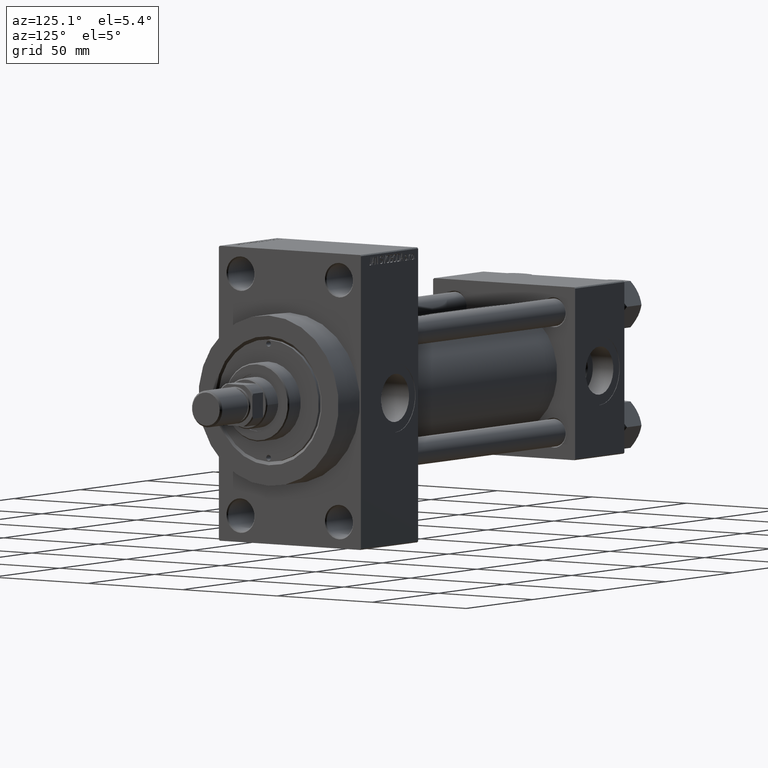
[diagram: clean part render]
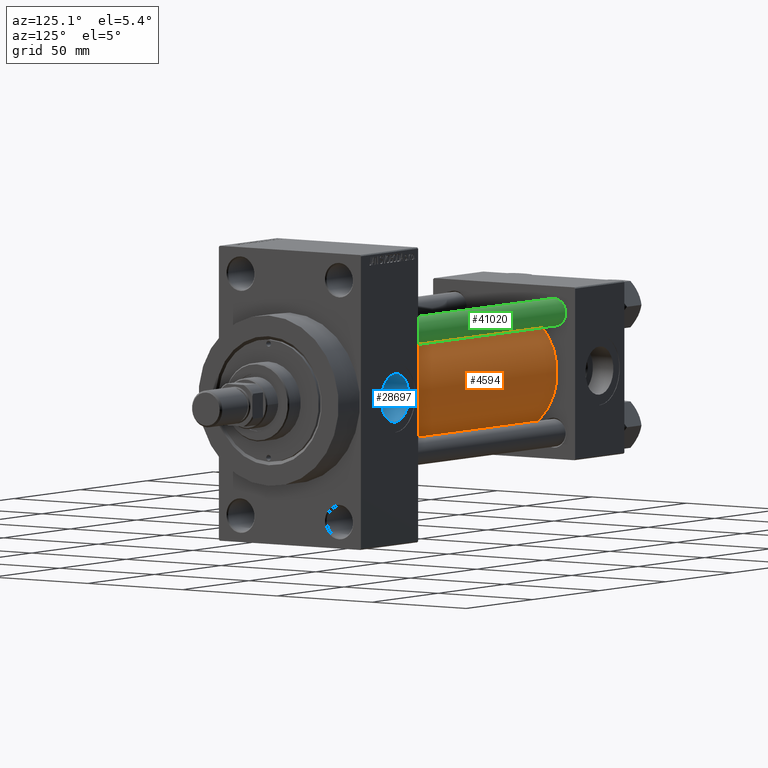
[diagram: same view with three faces highlighted in distinct colors, each labeled with its STEP entity id]
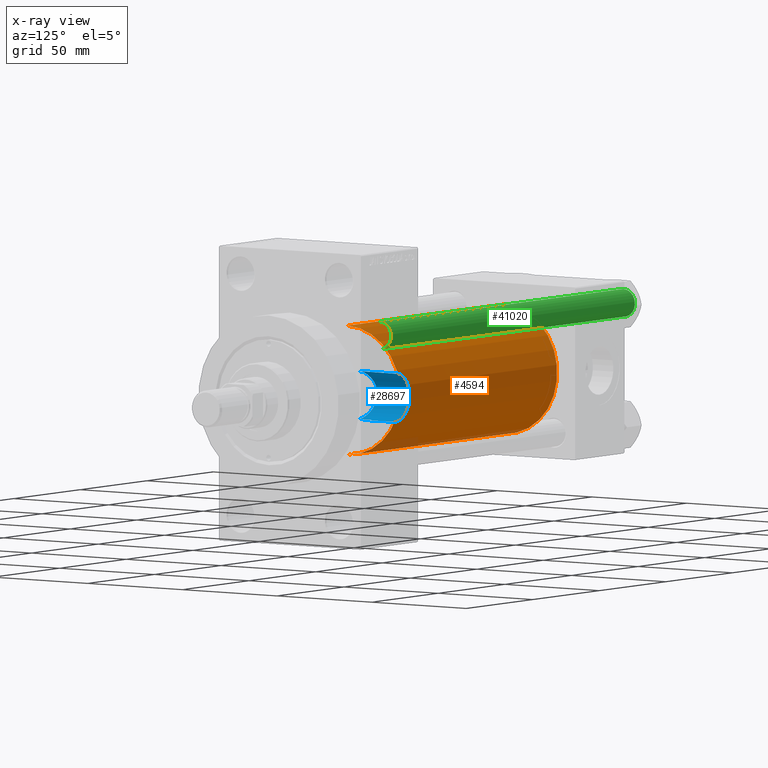
[diagram: x-ray of the same camera — body ghosted, the three highlighted faces saturated]
A machine part, auxiliary view with three faces highlighted in distinct colors.
The next image is the same camera in x-ray (body ghosted, the three faces saturated) — at least one of them is partly hidden behind the body in this view.
Their STEP definitions:

[orange] entity #4594 — the highlighted cylindrical surface (partial cylindrical patch) has radius 28 mm, axis along (-1, -0, -0).
#668 = CIRCLE ( 'NONE', #11199, 28.00000000000000000 ) ;
#4154 = VECTOR ( 'NONE', #9634, 1000.000000000000000 ) ;
#4594 = ADVANCED_FACE ( 'NONE', ( #46894 ), #12287, .T. ) ;
#5592 = EDGE_CURVE ( 'NONE', #42139, #32856, #30067, .T. ) ;
#7662 = EDGE_CURVE ( 'NONE', #17131, #32856, #22836, .T. ) ;
#9634 = DIRECTION ( 'NONE',  ( -1.000000000000000000, -0.000000000000000000, -0.000000000000000000 ) ) ;
#9651 = VECTOR ( 'NONE', #25080, 1000.000000000000000 ) ;
#10978 = CARTESIAN_POINT ( 'NONE',  ( 155.0000000000000000, 8.269258236473784371E-16, -28.00000000000000000 ) ) ;
#11199 = AXIS2_PLACEMENT_3D ( 'NONE', #42833, #23638, #35501 ) ;
#11543 = DIRECTION ( 'NONE',  ( -1.000000000000000000, -0.000000000000000000, -0.000000000000000000 ) ) ;
#12287 = CYLINDRICAL_SURFACE ( 'NONE', #22690, 28.00000000000000000 ) ;
#12554 = ORIENTED_EDGE ( 'NONE', *, *, #7662, .T. ) ;
#12862 = CARTESIAN_POINT ( 'NONE',  ( 37.00000000000000711, 8.269258236473784371E-16, -28.00000000000000000 ) ) ;
#13589 = EDGE_LOOP ( 'NONE', ( #35321, #40349, #12554, #35129 ) ) ;
#17131 = VERTEX_POINT ( 'NONE', #12862 ) ;
#18783 = CARTESIAN_POINT ( 'NONE',  ( 155.0000000000000000, -2.602085213965210642E-15, 28.00000000000000000 ) ) ;
#21793 = DIRECTION ( 'NONE',  ( 0.000000000000000000, 0.000000000000000000, 1.000000000000000000 ) ) ;
#22271 = VERTEX_POINT ( 'NONE', #10978 ) ;
#22690 = AXIS2_PLACEMENT_3D ( 'NONE', #43347, #11543, #27693 ) ;
#22836 = CIRCLE ( 'NONE', #34143, 28.00000000000000000 ) ;
#23638 = DIRECTION ( 'NONE',  ( 1.000000000000000000, 0.000000000000000000, 0.000000000000000000 ) ) ;
#25080 = DIRECTION ( 'NONE',  ( -1.000000000000000000, -0.000000000000000000, -0.000000000000000000 ) ) ;
#27693 = DIRECTION ( 'NONE',  ( 0.000000000000000000, 0.000000000000000000, 1.000000000000000000 ) ) ;
#29871 = CARTESIAN_POINT ( 'NONE',  ( 37.00000000000000711, -2.602085213965210642E-15, 0.000000000000000000 ) ) ;
#30067 = LINE ( 'NONE', #41432, #4154 ) ;
#31014 = EDGE_CURVE ( 'NONE', #22271, #42139, #668, .T. ) ;
#32157 = LINE ( 'NONE', #35941, #9651 ) ;
#32856 = VERTEX_POINT ( 'NONE', #39353 ) ;
#34143 = AXIS2_PLACEMENT_3D ( 'NONE', #29871, #36705, #21793 ) ;
#35129 = ORIENTED_EDGE ( 'NONE', *, *, #5592, .F. ) ;
#35321 = ORIENTED_EDGE ( 'NONE', *, *, #31014, .F. ) ;
#35322 = EDGE_CURVE ( 'NONE', #22271, #17131, #32157, .T. ) ;
#35501 = DIRECTION ( 'NONE',  ( 0.000000000000000000, 0.000000000000000000, -1.000000000000000000 ) ) ;
#35941 = CARTESIAN_POINT ( 'NONE',  ( 155.0000000000000000, 8.269258236473784371E-16, -28.00000000000000000 ) ) ;
#36705 = DIRECTION ( 'NONE',  ( 1.000000000000000000, -0.000000000000000000, 0.000000000000000000 ) ) ;
#39353 = CARTESIAN_POINT ( 'NONE',  ( 37.00000000000000711, -2.602085213965210642E-15, 28.00000000000000000 ) ) ;
#40349 = ORIENTED_EDGE ( 'NONE', *, *, #35322, .T. ) ;
#41432 = CARTESIAN_POINT ( 'NONE',  ( 155.0000000000000000, -2.602085213965210642E-15, 28.00000000000000000 ) ) ;
#42139 = VERTEX_POINT ( 'NONE', #18783 ) ;
#42833 = CARTESIAN_POINT ( 'NONE',  ( 155.0000000000000000, -2.602085213965210642E-15, 0.000000000000000000 ) ) ;
#43347 = CARTESIAN_POINT ( 'NONE',  ( 155.0000000000000000, -2.602085213965210642E-15, 0.000000000000000000 ) ) ;
#46894 = FACE_OUTER_BOUND ( 'NONE', #13589, .T. ) ;

[blue] entity #28697 — the highlighted cylindrical surface (edge-blend (fillet) strip) has radius 10.48 mm, axis along (0, 1, 0).
#73 = FACE_OUTER_BOUND ( 'NONE', #39727, .T. ) ;
#523 = B_SPLINE_CURVE_WITH_KNOTS ( 'NONE', 3,
 ( #33369, #21734, #2542, #48789 ),
 .UNSPECIFIED., .F., .F.,
 ( 4, 4 ),
 ( 0.03437190755806003584, 0.03561776921873210239 ),
 .UNSPECIFIED. ) ;
#828 = ORIENTED_EDGE ( 'NONE', *, *, #34407, .T. ) ;
#1098 = CARTESIAN_POINT ( 'NONE',  ( 170.7400000000000375, 17.66372554134603590, 10.40398000767013009 ) ) ;
#1335 = CARTESIAN_POINT ( 'NONE',  ( 167.3908628646930765, 18.20965404972803370, -9.417308131441652463 ) ) ;
#1666 = CARTESIAN_POINT ( 'NONE',  ( 172.0000000000000000, -29.64191626734003648, -10.47999999999998799 ) ) ;
#1905 = ORIENTED_EDGE ( 'NONE', *, *, #15613, .F. ) ;
#2542 = CARTESIAN_POINT ( 'NONE',  ( 171.1580741051582777, 24.35064928096445058, -10.45461191700780823 ) ) ;
#2585 = CARTESIAN_POINT ( 'NONE',  ( 162.4587195145564067, 20.03597512078205156, 4.346863487503881629 ) ) ;
#3441 = DIRECTION ( 'NONE',  ( 0.000000000000000000, 1.000000000000000000, 0.000000000000000000 ) ) ;
#4600 = ORIENTED_EDGE ( 'NONE', *, *, #6192, .T. ) ;
#4853 = CARTESIAN_POINT ( 'NONE',  ( 162.0031508505378781, 20.25711897762383984, 3.161628577960798658 ) ) ;
#5355 = CARTESIAN_POINT ( 'NONE',  ( 162.1038390309689703, 20.20751560694123938, 3.463692888950891113 ) ) ;
#5374 = EDGE_CURVE ( 'NONE', #47571, #33286, #11917, .T. ) ;
#6192 = EDGE_CURVE ( 'NONE', #24234, #41224, #14009, .T. ) ;
#7579 = CARTESIAN_POINT ( 'NONE',  ( 171.5811236364006049, 24.33967132070604933, 10.47999999999998444 ) ) ;
#8641 = DIRECTION ( 'NONE',  ( 0.000000000000000000, 0.000000000000000000, 1.000000000000000000 ) ) ;
#8658 = CARTESIAN_POINT ( 'NONE',  ( 161.5194347766352791, 20.50028895312889432, 0.6338901944550098255 ) ) ;
#9026 = VECTOR ( 'NONE', #26585, 1000.000000000000000 ) ;
#9160 = CARTESIAN_POINT ( 'NONE',  ( 163.3906553486646089, 19.60752197575039801, -6.008635476422296229 ) ) ;
#9529 = EDGE_CURVE ( 'NONE', #17623, #47571, #16843, .T. ) ;
#9668 = CARTESIAN_POINT ( 'NONE',  ( 161.6413500805444130, 20.43816521463578439, -1.622339351879687364 ) ) ;
#9926 = CARTESIAN_POINT ( 'NONE',  ( 166.5501105018311421, 18.43457416514922187, 8.973569604830416324 ) ) ;
#10910 = CARTESIAN_POINT ( 'NONE',  ( 162.3316230008212244, 20.09694501355986063, 4.056310707489509504 ) ) ;
#11444 = CARTESIAN_POINT ( 'NONE',  ( 172.0000000000000000, 24.33967132070604578, -10.47999999999998799 ) ) ;
#11917 = LINE ( 'NONE', #49591, #9026 ) ;
#12780 = LINE ( 'NONE', #1666, #20684 ) ;
#13205 = CARTESIAN_POINT ( 'NONE',  ( 162.4497435801187066, 20.03964341536166671, -4.361650410534330113 ) ) ;
#13458 = CARTESIAN_POINT ( 'NONE',  ( 169.4692110592002336, 17.78960674829260569, -10.18955633345271750 ) ) ;
#14009 = LINE ( 'NONE', #33941, #20351 ) ;
#14213 = CARTESIAN_POINT ( 'NONE',  ( 170.0932392917491143, 17.70986068370254074, 10.32565243574136815 ) ) ;
#15613 = EDGE_CURVE ( 'NONE', #24234, #22321, #30824, .T. ) ;
#15971 = CARTESIAN_POINT ( 'NONE',  ( 172.0000000000000000, -29.64191626734003648, -2.032879073410320814E-15 ) ) ;
#16223 = CYLINDRICAL_SURFACE ( 'NONE', #17565, 10.47999999999998622 ) ;
#16737 = CARTESIAN_POINT ( 'NONE',  ( 166.5540551289640234, 18.43336478924038246, -8.976070117816972171 ) ) ;
#16843 = B_SPLINE_CURVE_WITH_KNOTS ( 'NONE', 3,
 ( #45733, #38881, #7579, #46233 ),
 .UNSPECIFIED., .F., .F.,
 ( 4, 4 ),
 ( 0.000000000000000000, 0.001255586767787659347 ),
 .UNSPECIFIED. ) ;
#16992 = CARTESIAN_POINT ( 'NONE',  ( 168.5622284196642227, 17.94851741335673267, -9.905176136510956297 ) ) ;
#17249 = CARTESIAN_POINT ( 'NONE',  ( 170.7400000000000375, 17.66372554134603234, -10.40398000767013365 ) ) ;
#17565 = AXIS2_PLACEMENT_3D ( 'NONE', #15971, #35418, #8641 ) ;
#17623 = VERTEX_POINT ( 'NONE', #38517 ) ;
#17807 = VERTEX_POINT ( 'NONE', #11444 ) ;
#17998 = CARTESIAN_POINT ( 'NONE',  ( 167.3846545558101866, 18.21123748805219833, 9.414241774011506081 ) ) ;
#18483 = CARTESIAN_POINT ( 'NONE',  ( 166.0285517498637660, 18.59748531110672687, 8.634753340253881859 ) ) ;
#20351 = VECTOR ( 'NONE', #25619, 1000.000000000000000 ) ;
#20511 = AXIS2_PLACEMENT_3D ( 'NONE', #46627, #3441, #30966 ) ;
#20684 = VECTOR ( 'NONE', #31989, 1000.000000000000000 ) ;
#21288 = CARTESIAN_POINT ( 'NONE',  ( 161.5775683569960108, 20.47037528635598846, 1.274177104114182280 ) ) ;
#21734 = CARTESIAN_POINT ( 'NONE',  ( 171.5796744023297151, 24.33967132070604933, -10.47999999999998799 ) ) ;
#22045 = EDGE_CURVE ( 'NONE', #30719, #33286, #42275, .T. ) ;
#22321 = VERTEX_POINT ( 'NONE', #1098 ) ;
#22731 = LINE ( 'NONE', #37642, #35380 ) ;
#24065 = CARTESIAN_POINT ( 'NONE',  ( 161.7549241387679331, 20.38083843111444082, 2.230218096741761968 ) ) ;
#24201 = ORIENTED_EDGE ( 'NONE', *, *, #45254, .F. ) ;
#24234 = VERTEX_POINT ( 'NONE', #40943 ) ;
#25312 = CARTESIAN_POINT ( 'NONE',  ( 170.7400000000000375, 24.37226292324945831, -10.40398000767013365 ) ) ;
#25329 = CARTESIAN_POINT ( 'NONE',  ( 170.7400000000000375, 17.66372554134603590, 10.40398000767013009 ) ) ;
#25619 = DIRECTION ( 'NONE',  ( -0.000000000000000000, 1.000000000000000000, -0.000000000000000000 ) ) ;
#26039 = DIRECTION ( 'NONE',  ( 0.000000000000000000, -1.000000000000000000, 0.000000000000000000 ) ) ;
#26319 = CARTESIAN_POINT ( 'NONE',  ( 162.7394326810551206, 19.90382809429887345, 4.916619612314014454 ) ) ;
#26585 = DIRECTION ( 'NONE',  ( -0.000000000000000000, 1.000000000000000000, -0.000000000000000000 ) ) ;
#27149 = EDGE_CURVE ( 'NONE', #17807, #30719, #12780, .T. ) ;
#27292 = CARTESIAN_POINT ( 'NONE',  ( 172.0000000000000000, 37.29999999999999005, -10.47999999999998799 ) ) ;
#27860 = CARTESIAN_POINT ( 'NONE',  ( 161.5202887705626722, 20.49985237489623202, -0.3308603822798261151 ) ) ;
#28612 = CARTESIAN_POINT ( 'NONE',  ( 162.7349221210388350, 19.90416465987142658, -4.937899098886218141 ) ) ;
#28697 = ADVANCED_FACE ( 'NONE', ( #73 ), #16223, .F. ) ;
#28858 = CARTESIAN_POINT ( 'NONE',  ( 168.2648511999845766, 18.00804264202512783, -9.796911922746383894 ) ) ;
#29115 = CARTESIAN_POINT ( 'NONE',  ( 163.7585215008533908, 19.44730781319915280, 6.503667501390195227 ) ) ;
#29123 = CARTESIAN_POINT ( 'NONE',  ( 172.0000000000000000, 24.33967132070604933, 10.47999999999998444 ) ) ;
#29612 = CARTESIAN_POINT ( 'NONE',  ( 162.8934847984987471, 19.83246682013211881, 5.196259042236636816 ) ) ;
#29853 = CARTESIAN_POINT ( 'NONE',  ( 164.5883649652936640, 19.11041985978088675, 7.435544696446156898 ) ) ;
#30719 = VERTEX_POINT ( 'NONE', #27292 ) ;
#30824 = B_SPLINE_CURVE_WITH_KNOTS ( 'NONE', 3,
 ( #17249, #47818, #13458, #16992, #28858, #35930, #1335, #16737, #48326, #44273, #32400, #32149, #9160, #28612, #13205, #39968, #44023, #9668, #43267, #32902, #27860, #8658, #21288, #24065, #39461, #4853, #5355, #10910, #2585, #26319, #29612, #41222, #29115, #29853, #40731, #18483, #9926, #17998, #33409, #48830, #37176, #45267, #14213, #25329 ),
 .UNSPECIFIED., .F., .F.,
 ( 4, 2, 2, 2, 2, 2, 2, 2, 2, 2, 2, 2, 2, 2, 2, 2, 2, 2, 2, 2, 2, 4 ),
 ( 0.000000000000000000, 0.001926809448868544578, 0.002890214173302857199, 0.003853618897737169386, 0.005780428346605790725, 0.007707237795474412498, 0.009634047244343033403, 0.01156085669321165604, 0.01348766614208027695, 0.01445107086651458046, 0.01541447559094888398, 0.01734128503981749447, 0.01830468976425179625, 0.01926809448868609803, 0.02023149921312040328, 0.02119490393755470506, 0.02312171338642330862, 0.02504852283529191218, 0.02697533228416051226, 0.02793873700859477935, 0.02890214173302904296, 0.03082895118189765693 ),
 .UNSPECIFIED. ) ;
#30966 = DIRECTION ( 'NONE',  ( 0.000000000000000000, 0.000000000000000000, 1.000000000000000000 ) ) ;
#31143 = ORIENTED_EDGE ( 'NONE', *, *, #27149, .T. ) ;
#31989 = DIRECTION ( 'NONE',  ( -0.000000000000000000, 1.000000000000000000, -0.000000000000000000 ) ) ;
#32149 = CARTESIAN_POINT ( 'NONE',  ( 163.7616963509113077, 19.44597719880566089, -6.507545042971040417 ) ) ;
#32400 = CARTESIAN_POINT ( 'NONE',  ( 164.5898559263963818, 19.10985655083377210, -7.436904887742093351 ) ) ;
#32597 = ORIENTED_EDGE ( 'NONE', *, *, #9529, .F. ) ;
#32902 = CARTESIAN_POINT ( 'NONE',  ( 161.5353429949687154, 20.49214410358180416, -0.6531678235494207119 ) ) ;
#33286 = VERTEX_POINT ( 'NONE', #46280 ) ;
#33369 = CARTESIAN_POINT ( 'NONE',  ( 172.0000000000000000, 24.33967132070604578, -10.47999999999998799 ) ) ;
#33409 = CARTESIAN_POINT ( 'NONE',  ( 167.6731848345799847, 18.13998450134081253, 9.550405103935329265 ) ) ;
#33941 = CARTESIAN_POINT ( 'NONE',  ( 170.7400000000000375, -29.64191626734003648, -10.40398000767013365 ) ) ;
#34407 = EDGE_CURVE ( 'NONE', #17623, #22321, #22731, .T. ) ;
#35380 = VECTOR ( 'NONE', #26039, 1000.000000000000000 ) ;
#35418 = DIRECTION ( 'NONE',  ( -0.000000000000000000, 1.000000000000000000, -0.000000000000000000 ) ) ;
#35930 = CARTESIAN_POINT ( 'NONE',  ( 167.6797447738803442, 18.13843621863674116, -9.553335258510120553 ) ) ;
#37176 = CARTESIAN_POINT ( 'NONE',  ( 168.5586034380959859, 17.94919963049265377, 9.903944034907024019 ) ) ;
#37642 = CARTESIAN_POINT ( 'NONE',  ( 170.7400000000000375, -29.64191626734003648, 10.40398000767013009 ) ) ;
#38517 = CARTESIAN_POINT ( 'NONE',  ( 170.7400000000000375, 24.37226292324946186, 10.40398000767013009 ) ) ;
#38881 = CARTESIAN_POINT ( 'NONE',  ( 171.1611364518797984, 24.35049096341793273, 10.45498279016080367 ) ) ;
#39461 = CARTESIAN_POINT ( 'NONE',  ( 161.8288109744086967, 20.34372046973748027, 2.545545518699418697 ) ) ;
#39650 = ORIENTED_EDGE ( 'NONE', *, *, #5374, .F. ) ;
#39727 = EDGE_LOOP ( 'NONE', ( #24201, #31143, #46945, #39650, #32597, #828, #1905, #4600 ) ) ;
#39968 = CARTESIAN_POINT ( 'NONE',  ( 161.9940503003028027, 20.26077342853017171, -3.179994118914084122 ) ) ;
#40731 = CARTESIAN_POINT ( 'NONE',  ( 165.0492562722549508, 18.93465352367354626, 7.867929910865573362 ) ) ;
#40943 = CARTESIAN_POINT ( 'NONE',  ( 170.7400000000000375, 17.66372554134603234, -10.40398000767013365 ) ) ;
#41222 = CARTESIAN_POINT ( 'NONE',  ( 163.3865427488642013, 19.60931742929914279, 6.003004479396535586 ) ) ;
#41224 = VERTEX_POINT ( 'NONE', #25312 ) ;
#42275 = CIRCLE ( 'NONE', #20511, 10.47999999999998622 ) ;
#43267 = CARTESIAN_POINT ( 'NONE',  ( 161.5957902639761983, 20.46134169501556954, -1.299266796120106093 ) ) ;
#44023 = CARTESIAN_POINT ( 'NONE',  ( 161.8195863185151211, 20.34821612510051025, -2.569519367473426463 ) ) ;
#44273 = CARTESIAN_POINT ( 'NONE',  ( 165.0506999956342327, 18.93410654091558243, -7.869268069913849750 ) ) ;
#45254 = EDGE_CURVE ( 'NONE', #17807, #41224, #523, .T. ) ;
#45267 = CARTESIAN_POINT ( 'NONE',  ( 169.4678957388831009, 17.78974368295219932, 10.18933358872181572 ) ) ;
#45733 = CARTESIAN_POINT ( 'NONE',  ( 170.7400000000000375, 24.37226292324946186, 10.40398000767013009 ) ) ;
#46233 = CARTESIAN_POINT ( 'NONE',  ( 172.0000000000000000, 24.33967132070604933, 10.47999999999998444 ) ) ;
#46280 = CARTESIAN_POINT ( 'NONE',  ( 172.0000000000000000, 37.29999999999999005, 10.47999999999998444 ) ) ;
#46627 = CARTESIAN_POINT ( 'NONE',  ( 172.0000000000000000, 37.29999999999999005, -2.032879073410320814E-15 ) ) ;
#46945 = ORIENTED_EDGE ( 'NONE', *, *, #22045, .T. ) ;
#47571 = VERTEX_POINT ( 'NONE', #29123 ) ;
#47818 = CARTESIAN_POINT ( 'NONE',  ( 170.0935359396745810, 17.70983952302579567, -10.32568836202976037 ) ) ;
#48326 = CARTESIAN_POINT ( 'NONE',  ( 166.0314513987549674, 18.59653710660906967, -8.636815275402140557 ) ) ;
#48789 = CARTESIAN_POINT ( 'NONE',  ( 170.7400000000000375, 24.37226292324945831, -10.40398000767013365 ) ) ;
#48830 = CARTESIAN_POINT ( 'NONE',  ( 168.2603242755633914, 18.00896673207867238, 9.795222948000848362 ) ) ;
#49591 = CARTESIAN_POINT ( 'NONE',  ( 172.0000000000000000, -29.64191626734003648, 10.47999999999998444 ) ) ;

[green] entity #41020 — the highlighted cylindrical surface (edge-blend (fillet) strip) has radius 6 mm, axis along (-1, -0, 0).
#97 = CIRCLE ( 'NONE', #32367, 6.000000000000000888 ) ;
#314 = CARTESIAN_POINT ( 'NONE',  ( 6.000000000000000888, 7.347880794884120722E-16, 184.0000000000000000 ) ) ;
#2017 = VECTOR ( 'NONE', #42484, 1000.000000000000000 ) ;
#2637 = CARTESIAN_POINT ( 'NONE',  ( 0.000000000000000000, 0.000000000000000000, 0.5000000000000004441 ) ) ;
#3365 = FACE_OUTER_BOUND ( 'NONE', #33086, .T. ) ;
#4377 = EDGE_CURVE ( 'NONE', #48518, #5311, #97, .T. ) ;
#5176 = CARTESIAN_POINT ( 'NONE',  ( -6.000000000000000888, 0.000000000000000000, 184.0000000000000000 ) ) ;
#5311 = VERTEX_POINT ( 'NONE', #34661 ) ;
#6370 = ORIENTED_EDGE ( 'NONE', *, *, #4377, .T. ) ;
#6667 = DIRECTION ( 'NONE',  ( 1.000000000000000000, 0.000000000000000000, 0.000000000000000000 ) ) ;
#7571 = DIRECTION ( 'NONE',  ( -0.000000000000000000, -0.000000000000000000, -1.000000000000000000 ) ) ;
#8492 = ORIENTED_EDGE ( 'NONE', *, *, #27990, .F. ) ;
#9743 = VERTEX_POINT ( 'NONE', #32569 ) ;
#11197 = DIRECTION ( 'NONE',  ( -0.000000000000000000, -0.000000000000000000, -1.000000000000000000 ) ) ;
#11442 = DIRECTION ( 'NONE',  ( -1.000000000000000000, 0.000000000000000000, 0.000000000000000000 ) ) ;
#11476 = ORIENTED_EDGE ( 'NONE', *, *, #40298, .T. ) ;
#13762 = AXIS2_PLACEMENT_3D ( 'NONE', #15481, #11197, #11442 ) ;
#14261 = DIRECTION ( 'NONE',  ( -0.000000000000000000, -0.000000000000000000, 1.000000000000000000 ) ) ;
#14998 = CYLINDRICAL_SURFACE ( 'NONE', #13762, 6.000000000000000888 ) ;
#15481 = CARTESIAN_POINT ( 'NONE',  ( 0.000000000000000000, 0.000000000000000000, 184.0000000000000000 ) ) ;
#17002 = CARTESIAN_POINT ( 'NONE',  ( 6.000000000000000888, 7.347880794884120722E-16, 0.5000000000000004441 ) ) ;
#22347 = CARTESIAN_POINT ( 'NONE',  ( -6.000000000000000888, 0.000000000000000000, 183.5000000000000000 ) ) ;
#23955 = EDGE_CURVE ( 'NONE', #5311, #35377, #46289, .T. ) ;
#25587 = ORIENTED_EDGE ( 'NONE', *, *, #23955, .T. ) ;
#26616 = CIRCLE ( 'NONE', #35484, 6.000000000000000888 ) ;
#27198 = DIRECTION ( 'NONE',  ( 0.000000000000000000, 0.000000000000000000, -1.000000000000000000 ) ) ;
#27986 = VECTOR ( 'NONE', #7571, 1000.000000000000000 ) ;
#27990 = EDGE_CURVE ( 'NONE', #48518, #9743, #45725, .T. ) ;
#32367 = AXIS2_PLACEMENT_3D ( 'NONE', #43109, #27198, #42602 ) ;
#32569 = CARTESIAN_POINT ( 'NONE',  ( -6.000000000000000888, 0.000000000000000000, 0.5000000000000004441 ) ) ;
#33086 = EDGE_LOOP ( 'NONE', ( #6370, #25587, #11476, #8492 ) ) ;
#34661 = CARTESIAN_POINT ( 'NONE',  ( 6.000000000000000888, 7.347880794884120722E-16, 183.5000000000000000 ) ) ;
#35377 = VERTEX_POINT ( 'NONE', #17002 ) ;
#35484 = AXIS2_PLACEMENT_3D ( 'NONE', #2637, #14261, #6667 ) ;
#40298 = EDGE_CURVE ( 'NONE', #35377, #9743, #26616, .T. ) ;
#41020 = ADVANCED_FACE ( 'NONE', ( #3365 ), #14998, .T. ) ;
#42484 = DIRECTION ( 'NONE',  ( -0.000000000000000000, -0.000000000000000000, -1.000000000000000000 ) ) ;
#42602 = DIRECTION ( 'NONE',  ( 1.000000000000000000, 0.000000000000000000, 0.000000000000000000 ) ) ;
#43109 = CARTESIAN_POINT ( 'NONE',  ( 0.000000000000000000, 0.000000000000000000, 183.5000000000000000 ) ) ;
#45725 = LINE ( 'NONE', #5176, #27986 ) ;
#46289 = LINE ( 'NONE', #314, #2017 ) ;
#48518 = VERTEX_POINT ( 'NONE', #22347 ) ;